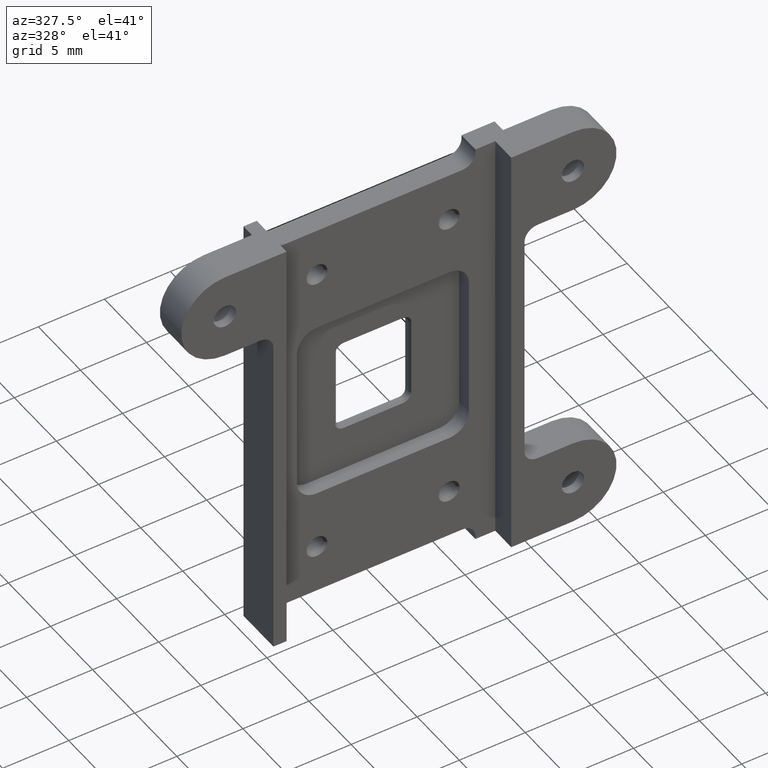
[diagram: clean part render]
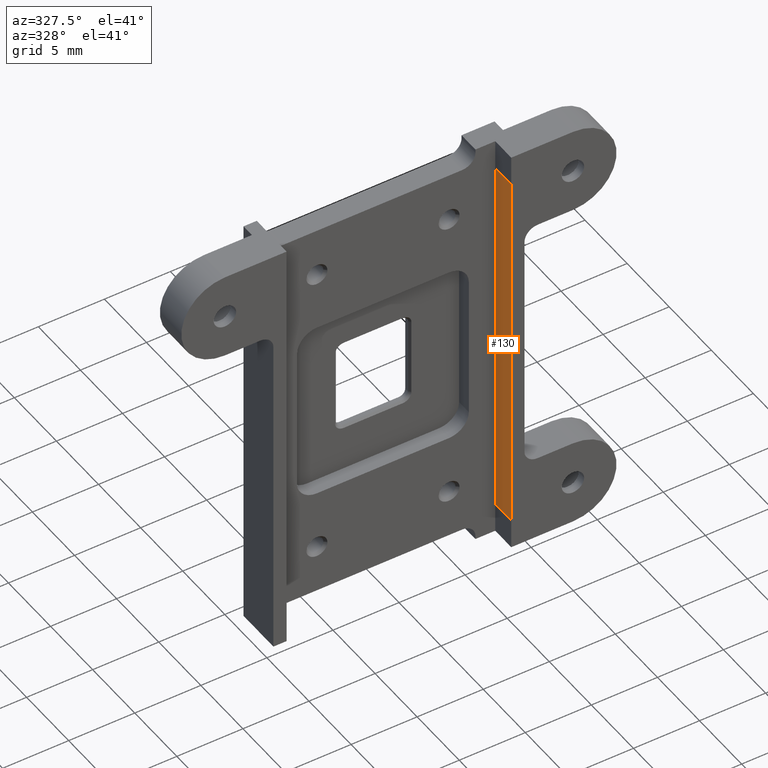
[diagram: same view with one face highlighted and labeled with its STEP entity id]
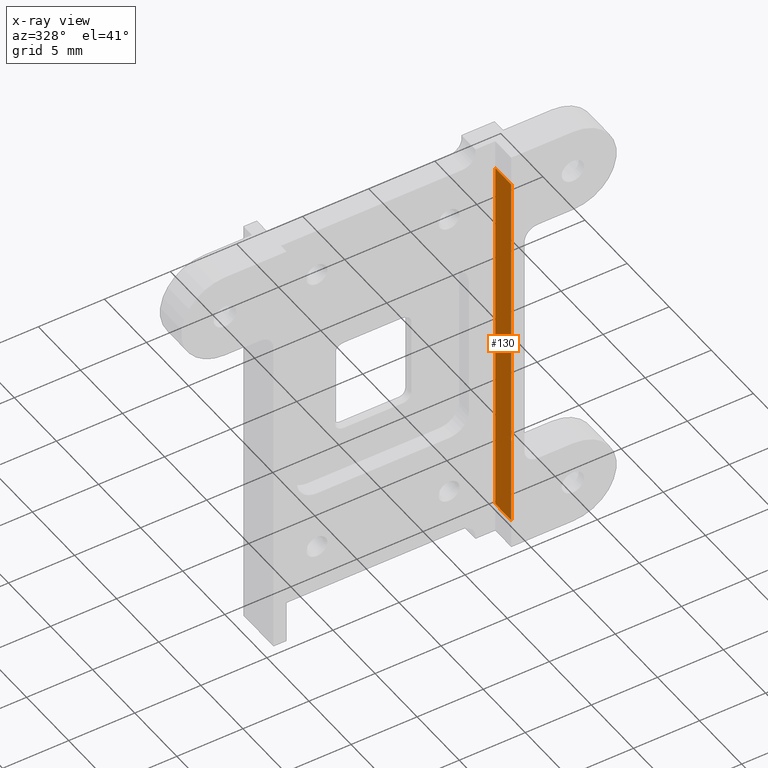
[diagram: x-ray of the same camera — body ghosted, the highlighted face saturated]
A machine part, auxiliary view. The second image highlights one B-rep face of the part: STEP entity #130.
The next image is the same camera in x-ray: the body ghosted, the highlighted face saturated — about 0% of this face is hidden behind the body in this view.
In plain terms, the highlighted planar face has unit normal (-1, 0, 0).
Its self-contained STEP definition (entity closure, byte-faithful):
#130=ADVANCED_FACE('',(#241),#1065,.T.);
#241=FACE_OUTER_BOUND('',#389,.F.);
#389=EDGE_LOOP('',(#732,#733,#734,#735));
#732=ORIENTED_EDGE('',*,*,#1782,.T.);
#733=ORIENTED_EDGE('',*,*,#1784,.F.);
#734=ORIENTED_EDGE('',*,*,#1700,.F.);
#735=ORIENTED_EDGE('',*,*,#1785,.T.);
#1065=PLANE('',#2339);
#1300=LINE('',#3318,#1483);
#1356=LINE('',#3400,#1539);
#1358=LINE('',#3402,#1541);
#1359=LINE('',#3403,#1542);
#1483=VECTOR('',#2553,28.4000000000015);
#1539=VECTOR('',#2661,28.4000000000015);
#1541=VECTOR('',#2663,1.9);
#1542=VECTOR('',#2664,1.9);
#1700=EDGE_CURVE('',#2090,#2095,#1300,.T.);
#1782=EDGE_CURVE('',#2033,#2036,#1356,.T.);
#1784=EDGE_CURVE('',#2095,#2036,#1358,.T.);
#1785=EDGE_CURVE('',#2090,#2033,#1359,.T.);
#2033=VERTEX_POINT('',#3080);
#2036=VERTEX_POINT('',#3083);
#2090=VERTEX_POINT('',#3137);
#2095=VERTEX_POINT('',#3142);
#2339=AXIS2_PLACEMENT_3D('',#3540,#2884,#2885);
#2553=DIRECTION('',(0.,0.,1.));
#2661=DIRECTION('',(0.,0.,1.));
#2663=DIRECTION('',(0.,1.,0.));
#2664=DIRECTION('',(0.,1.,0.));
#2884=DIRECTION('',(-1.,0.,0.));
#2885=DIRECTION('',(0.,0.,1.));
#3080=CARTESIAN_POINT('',(8.50000742006468,-13.088,-14.1999996214716));
#3083=CARTESIAN_POINT('',(8.50000738906093,-13.088,14.2000003785291));
#3137=CARTESIAN_POINT('',(8.50000740908611,-14.988,-14.1999996214719));
#3142=CARTESIAN_POINT('',(8.50000736774767,-14.988,14.2000003785291));
#3318=CARTESIAN_POINT('',(8.50000745300015,-14.988,-14.1999996214723));
#3400=CARTESIAN_POINT('',(8.50000745300015,-13.088,-14.1999996214723));
#3402=CARTESIAN_POINT('',(8.50000732512109,-14.988,14.2000003785291));
#3403=CARTESIAN_POINT('',(8.50000738712909,-14.988,-14.199999621471));
#3540=CARTESIAN_POINT('',(8.50000745300014,-12.804,-14.4839996214723));